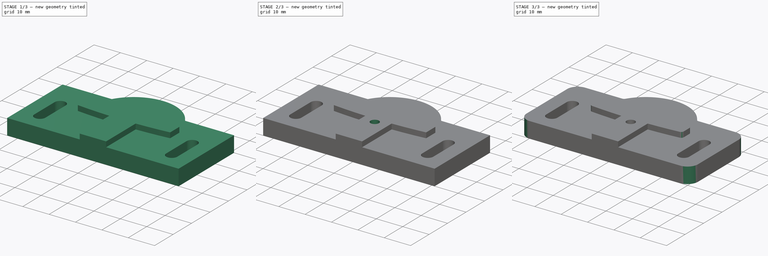
[diagram: build sequence overview — one tinted view per stage of 3, left to right]
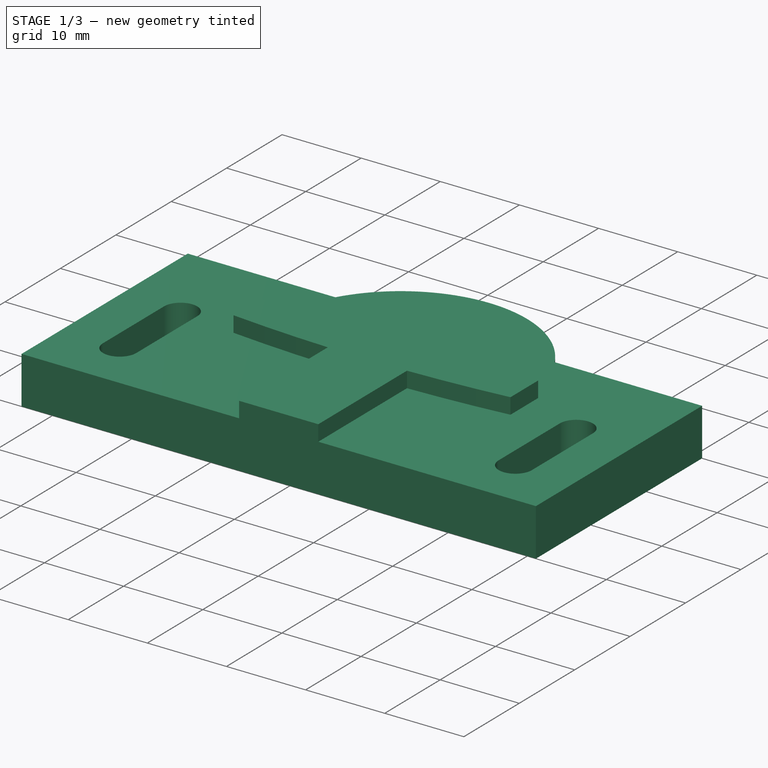
[diagram: stage 1 of 3 — iso view after this stage's code; geometry added in this stage tinted green]
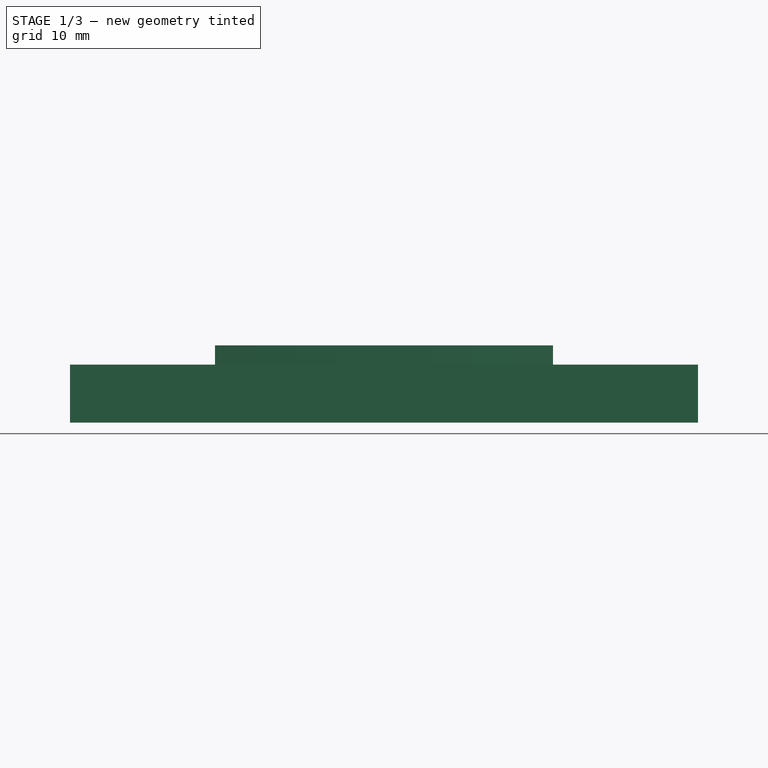
[diagram: stage 1 of 3 — front view after this stage's code; geometry added in this stage tinted green]
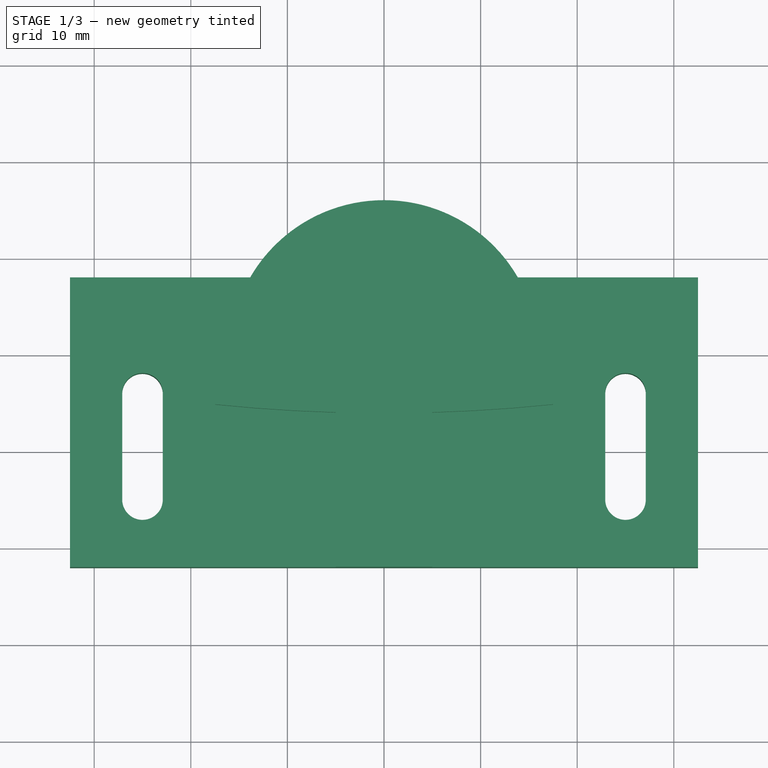
[diagram: stage 1 of 3 — top view after this stage's code; geometry added in this stage tinted green]
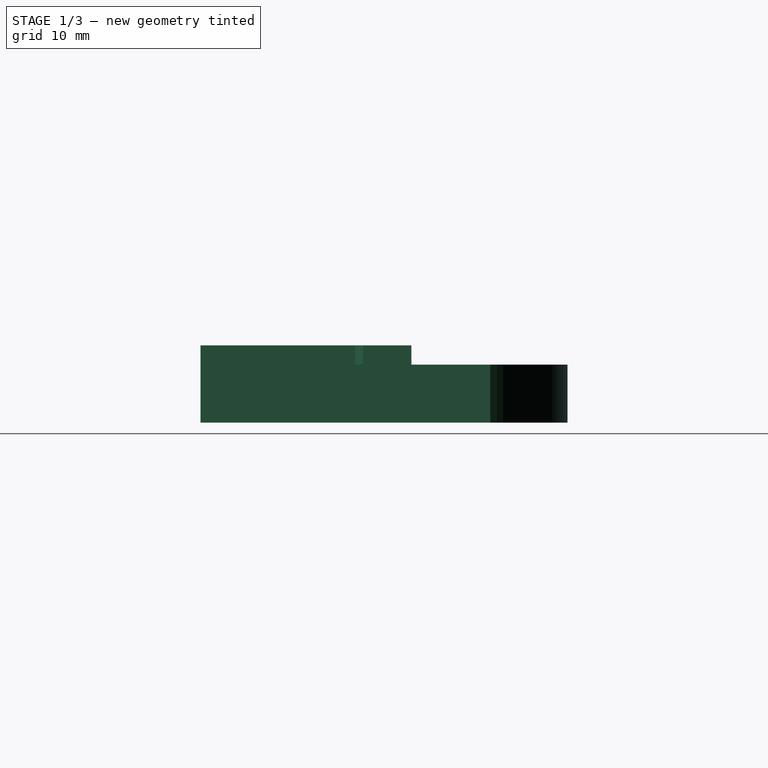
[diagram: stage 1 of 3 — right view after this stage's code; geometry added in this stage tinted green]
FCSTD DOCUMENT  (FreeCAD 0.16R6706 (Git))
Label: bed_mount
License: All rights reserved
LicenseURL: http://en.wikipedia.org/wiki/All_rights_reserved
objects: Sketcher::SketchObject×4, PartDesign::Pad×2, PartDesign::Pocket×2, PartDesign::Fillet×2
note: 14 computed .brp shape members not serialized (recipe doc carries the construction recipe); baked Part::Feature solids carry a one-line shape summary decoded from their .brp

FEATURE [Sketcher::SketchObject] Sketch
  sketch-geometry (14):
    g0: LineSegment StartX=32.5 StartY=18 StartZ=0 EndX=32.5 EndY=-12 EndZ=0
    g1: LineSegment StartX=32.5 StartY=-12 StartZ=0 EndX=-32.5 EndY=-12 EndZ=0
    g2: LineSegment StartX=-32.5 StartY=-12 StartZ=0 EndX=-32.5 EndY=18 EndZ=0
    g3: LineSegment StartX=-32.5 StartY=18 StartZ=0 EndX=-13.8564 EndY=18 EndZ=0
    g4: LineSegment StartX=32.5 StartY=18 StartZ=0 EndX=13.8564 EndY=18 EndZ=0
    g5: ArcOfCircle CenterX=0 CenterY=10 CenterZ=0 NormalX=0 NormalY=0 NormalZ=1 Radius=16 StartAngle=0.523599 EndAngle=2.61799
    g6: ArcOfCircle CenterX=25 CenterY=-5 CenterZ=0 NormalX=0 NormalY=0 NormalZ=1 Radius=2.1 StartAngle=3.14159 EndAngle=6.28319
    g7: ArcOfCircle CenterX=25 CenterY=6 CenterZ=0 NormalX=0 NormalY=0 NormalZ=1 Radius=2.1 StartAngle=0 EndAngle=3.14159
    g8: LineSegment StartX=27.1 StartY=-5 StartZ=0 EndX=27.1 EndY=6 EndZ=0
    g9: LineSegment StartX=22.9 StartY=-5 StartZ=0 EndX=22.9 EndY=6 EndZ=0
    g10: ArcOfCircle CenterX=-25 CenterY=-5 CenterZ=0 NormalX=0 NormalY=0 NormalZ=1 Radius=2.1 StartAngle=3.14159 EndAngle=6.28319
    g11: ArcOfCircle CenterX=-25 CenterY=6 CenterZ=0 NormalX=0 NormalY=0 NormalZ=1 Radius=2.1 StartAngle=0 EndAngle=3.14159
    g12: LineSegment StartX=-22.9 StartY=-5 StartZ=0 EndX=-22.9 EndY=6 EndZ=0
    g13: LineSegment StartX=-27.1 StartY=-5 StartZ=0 EndX=-27.1 EndY=6 EndZ=0
  constraints (38):
    c: Coincident(g0,g1)
    c: Coincident(g1,g2)
    c: Horizontal(g1)
    c: Vertical(g0)
    c: Vertical(g2)
    c: DistanceX(g1) = -65
    c: Symmetric(g1,g0,g-2)
    c: Coincident(g3,g2)
    c: Horizontal(g3)
    c: Coincident(g4,g0)
    c: Horizontal(g4)
    c: PointOnObject(g5,g-2)
    c: Radius(g5) = 16
    c: DistanceY(g-1,g5) = 10
    c: Coincident(g5,g4)
    c: PointOnObject(g5,g3)
    c: Symmetric(g3,g4,g-2)
    c: Tangent(g6,g9) = 1.5708
    c: Tangent(g6,g8) = -1.5708
    c: Tangent(g8,g7) = -1.5708
    c: Tangent(g9,g7) = 1.5708
    c: Vertical(g8)
    c: Equal(g6,g7)
    c: Tangent(g10,g13) = 1.5708
    c: Tangent(g10,g12) = -1.5708
    c: Tangent(g12,g11) = -1.5708
    c: Tangent(g13,g11) = 1.5708
    c: Vertical(g12)
    c: Equal(g10,g11)
    c: Equal(g10,g6)
    c: Radius(g6) = 2.1
    c: Symmetric(g10,g6,g-2)
    c: DistanceX(g10,g6) = 50
    c: DistanceY(g7,g0) = 12
    c: Symmetric(g11,g7,g-2)
    c: DistanceY(g-1,g1) = -12
    c: DistanceY(g0) = -30
    c: DistanceY(g10,g1) = -7
FEATURE [PartDesign::Pad] Pad
  Length = 6
  Length2 = 100
  Sketch = -> Sketch
  Type = 0
FEATURE [Sketcher::SketchObject] Sketch001
  ExternalGeometry = -> [Pad]
  Placement = pos=(0,0,6) rot=(0,0,1;0rad)
  Support = -> Pad [Face16]
  sketch-geometry (10):
    g0: LineSegment StartX=5 StartY=-12 StartZ=0 EndX=-5 EndY=-12 EndZ=0
    g1: LineSegment StartX=-5 StartY=-12 StartZ=0 EndX=-5 EndY=4 EndZ=0
    g2: ArcOfCircle CenterX=0 CenterY=173.899 CenterZ=0 NormalX=0 NormalY=0 NormalZ=1 Radius=165 StartAngle=4.60613 EndAngle=4.81865
    g3: LineSegment StartX=5 StartY=-12 StartZ=0 EndX=5 EndY=4 EndZ=0
    g4: LineSegment [constr] StartX=-17.5 StartY=4.82972 StartZ=0 EndX=17.5 EndY=4.82972 EndZ=0
    g5: LineSegment StartX=-17.5 StartY=4.82972 StartZ=0 EndX=-17.5 EndY=9.82972 EndZ=0
    g6: LineSegment StartX=17.5 StartY=4.82972 StartZ=0 EndX=17.5 EndY=9.82972 EndZ=0
    g7: ArcOfCircle CenterX=0 CenterY=173.899 CenterZ=0 NormalX=0 NormalY=0 NormalZ=1 Radius=169.973 StartAngle=4.60925 EndAngle=4.68297
    g8: ArcOfCircle CenterX=0 CenterY=173.899 CenterZ=0 NormalX=0 NormalY=0 NormalZ=1 Radius=169.973 StartAngle=4.74181 EndAngle=4.81553
    g9: LineSegment [constr] StartX=0 StartY=0 StartZ=0 EndX=0 EndY=173.899 EndZ=0
  constraints (29):
    c: Coincident(g0,g1)
    c: Horizontal(g0)
    c: Vertical(g1)
    c: Symmetric(g0,g0,g-2)
    c: PointOnObject(g0,g-3)
    c: DistanceX(g0,g0) = 10
    c: Coincident(g3,g0)
    c: Vertical(g3)
    c: DistanceY(g3) = 16
    c: Horizontal(g4)
    c: DistanceX(g4,g4) = 35
    c: Coincident(g5,g4)
    c: Vertical(g5)
    c: Coincident(g6,g4)
    c: Coincident(g2,g5)
    c: Coincident(g2,g6)
    c: Coincident(g7,g2)
    c: Coincident(g7,g4)
    c: Coincident(g7,g1)
    c: Coincident(g8,g2)
    c: Coincident(g8,g3)
    c: Coincident(g8,g4)
    c: Vertical(g6)
    c: Coincident(g9,g-1)
    c: Coincident(g9,g2)
    c: Vertical(g9)
    c: Symmetric(g4,g4,g-2)
    c: DistanceY(g6) = 5
    c: Radius(g2) = 165
FEATURE [PartDesign::Pad] Pad001
  Length = 2
  Length2 = 100
  Sketch = -> Sketch001
  Type = 0
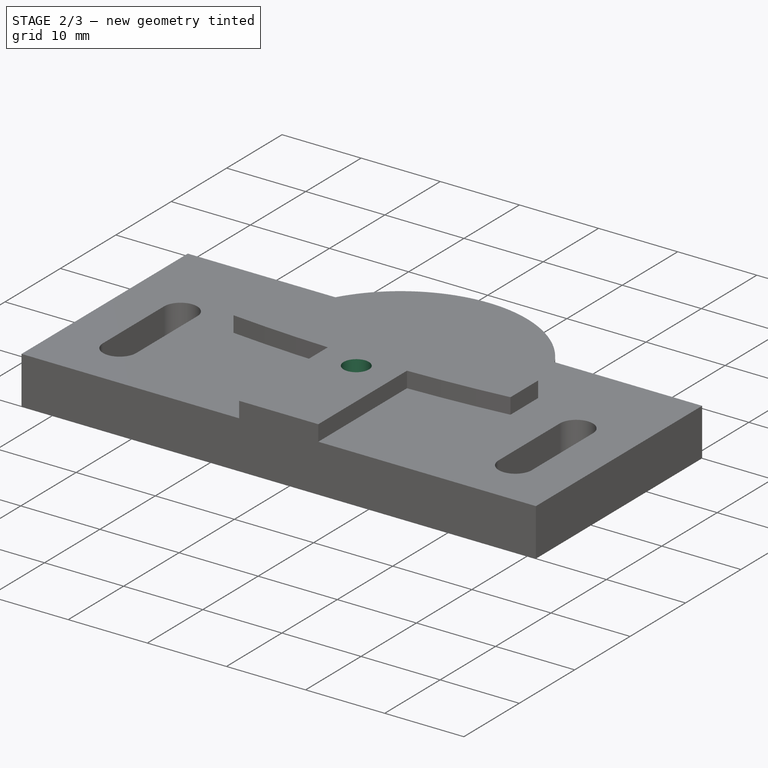
[diagram: stage 2 of 3 — iso view after this stage's code; geometry added in this stage tinted green]
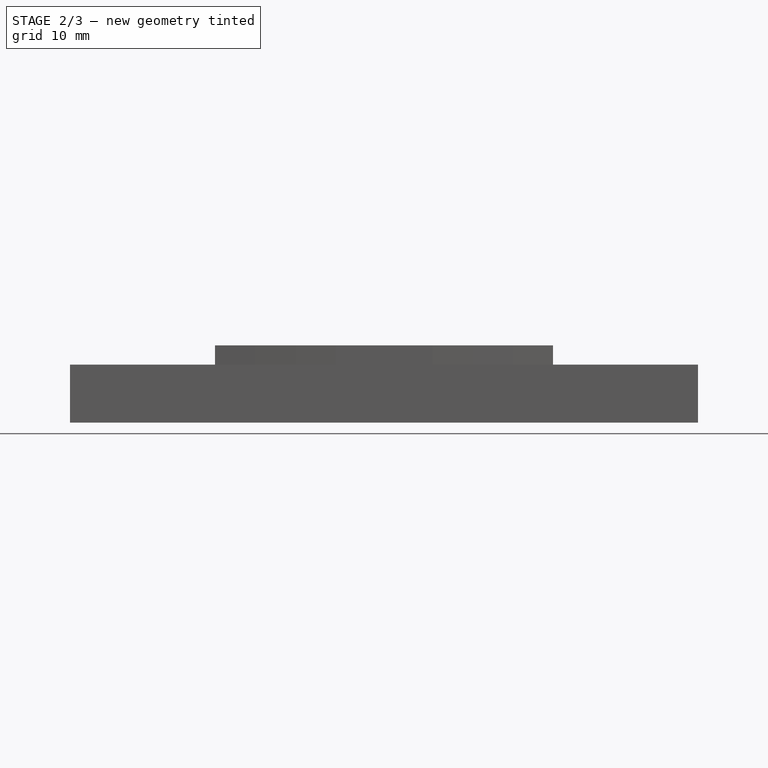
[diagram: stage 2 of 3 — front view after this stage's code; geometry added in this stage tinted green]
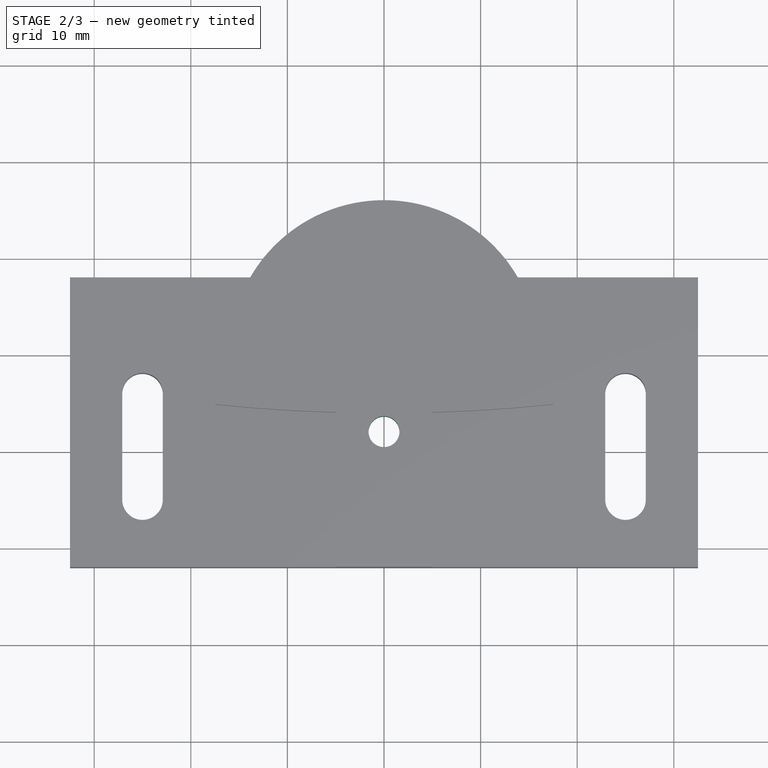
[diagram: stage 2 of 3 — top view after this stage's code; geometry added in this stage tinted green]
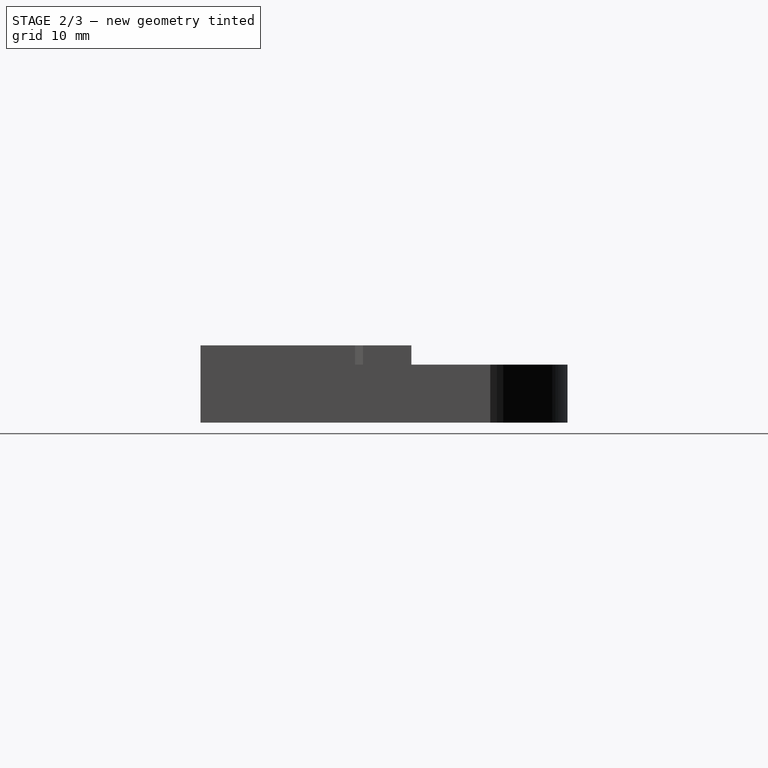
[diagram: stage 2 of 3 — right view after this stage's code; geometry added in this stage tinted green]
FEATURE [Sketcher::SketchObject] Sketch002
  Placement = pos=(0,0,8) rot=(0,0,1;0rad)
  Support = -> Pad001 [Face25]
  sketch-geometry (1):
    g0: Circle CenterX=0 CenterY=2 CenterZ=0 NormalX=0 NormalY=0 NormalZ=1 Radius=1.6
  constraints (3):
    c: Radius(g0) = 1.6
    c: PointOnObject(g0,g-2)
    c: DistanceY(g-1,g0) = 2
FEATURE [PartDesign::Pocket] Pocket
  Length = 5
  Sketch = -> Sketch002
  Type = 1
FEATURE [Sketcher::SketchObject] Sketch003
  ExternalGeometry = -> [Pocket]
  Placement = pos=(0,0,0) rot=(1,0,0;3.14159rad)
  Support = -> Pocket [Face4]
  sketch-geometry (7):
    g0: LineSegment StartX=2.85 StartY=-3.64545 StartZ=0 EndX=2.85 EndY=-0.354552 EndZ=0
    g1: LineSegment StartX=2.85 StartY=-0.354552 StartZ=0 EndX=0 EndY=1.2909 EndZ=0
    g2: LineSegment StartX=0 StartY=1.2909 StartZ=0 EndX=-2.85 EndY=-0.354552 EndZ=0
    g3: LineSegment StartX=-2.85 StartY=-0.354552 StartZ=0 EndX=-2.85 EndY=-3.64545 EndZ=0
    g4: LineSegment StartX=-2.85 StartY=-3.64545 StartZ=0 EndX=0 EndY=-5.2909 EndZ=0
    g5: LineSegment StartX=0 StartY=-5.2909 StartZ=0 EndX=2.85 EndY=-3.64545 EndZ=0
    g6: Circle [constr] CenterX=0 CenterY=-2 CenterZ=0 NormalX=0 NormalY=0 NormalZ=1 Radius=3.2909
  constraints (17):
    c: Coincident(g0,g1)
    c: Coincident(g1,g2)
    c: Coincident(g2,g3)
    c: Coincident(g3,g4)
    c: Coincident(g4,g5)
    c: Coincident(g5,g0)
    c: Equal(g0, g1-g5) x5
    c: PointOnObject(g0,g6)
    c: PointOnObject(g1,g6)
    c: PointOnObject(g2,g6)
    c: PointOnObject(g3,g6)
    c: PointOnObject(g4,g6)
    c: PointOnObject(g5,g6)
    c: Coincident(g3,g-3)
    c: Vertical(g0)
    c: Coincident(g6,g-3)
    c: DistanceX(g2,g0) = 5.7
FEATURE [PartDesign::Pocket] Pocket001
  Length = 4
  Sketch = -> Sketch003
  Type = 0
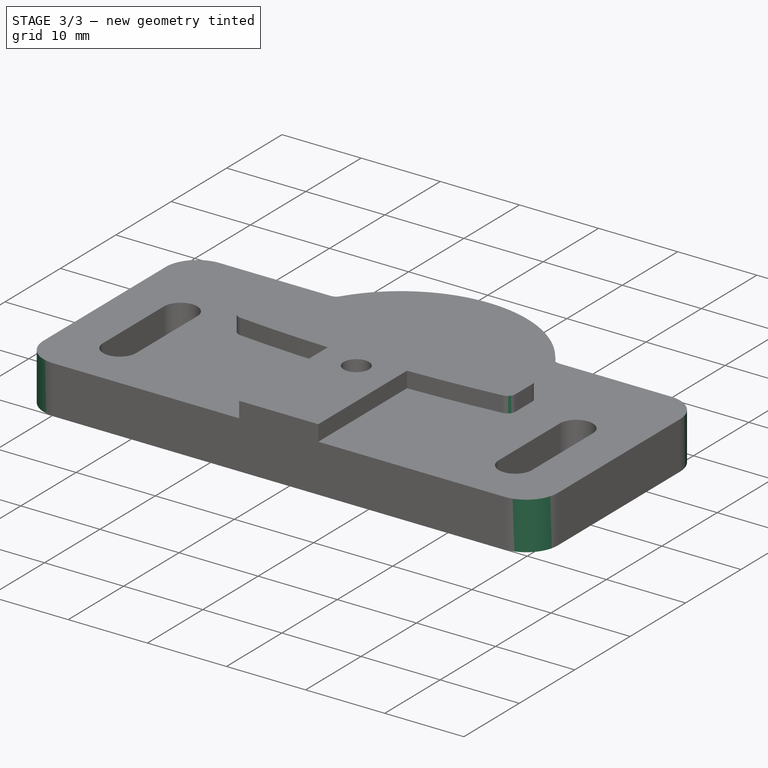
[diagram: stage 3 of 3 — iso view after this stage's code; geometry added in this stage tinted green]
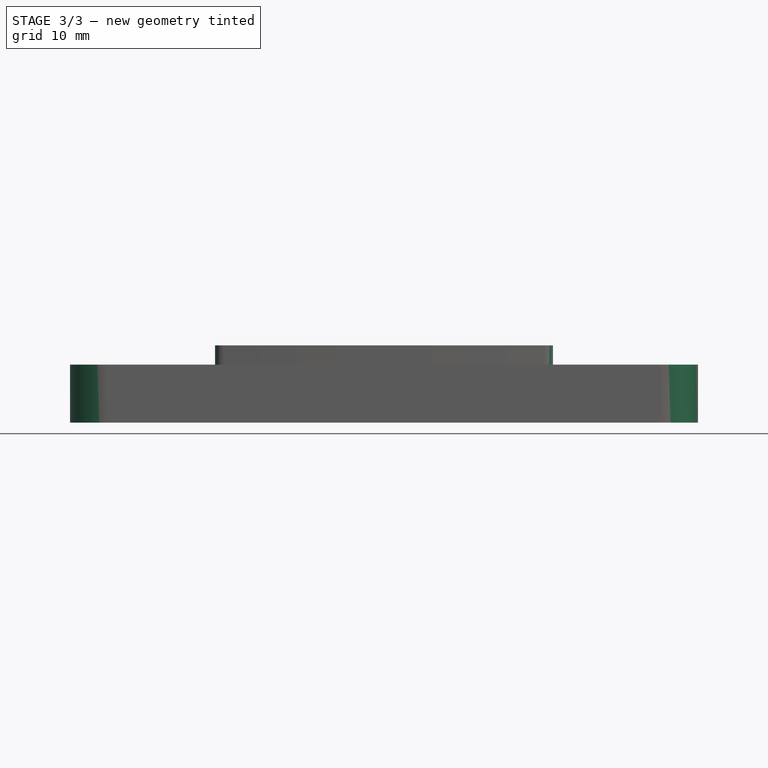
[diagram: stage 3 of 3 — front view after this stage's code; geometry added in this stage tinted green]
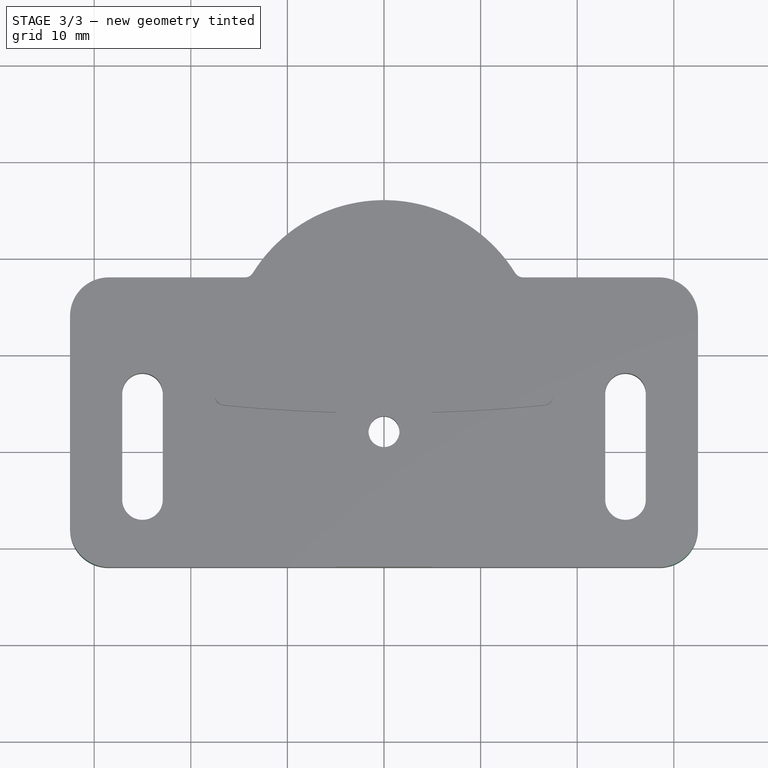
[diagram: stage 3 of 3 — top view after this stage's code; geometry added in this stage tinted green]
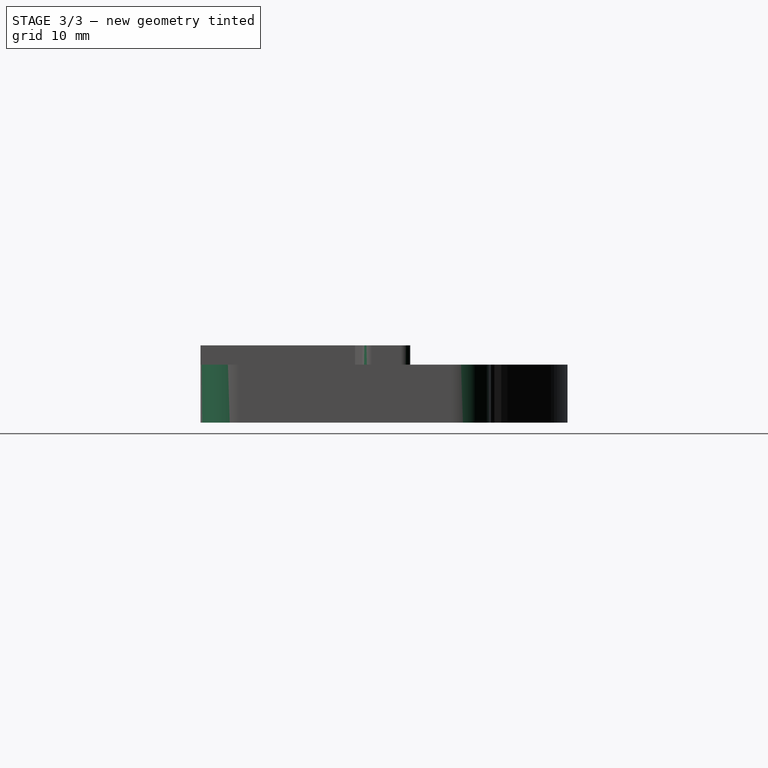
[diagram: stage 3 of 3 — right view after this stage's code; geometry added in this stage tinted green]
FEATURE [PartDesign::Fillet] Fillet
  Base = -> Pocket001 [Edge1,Edge2,Edge49,Edge10]
  Radius = 4
FEATURE [PartDesign::Fillet] Fillet001
  Base = -> Fillet [Edge88,Edge86,Edge89,Edge91,Edge58,Edge55]
  Radius = 1
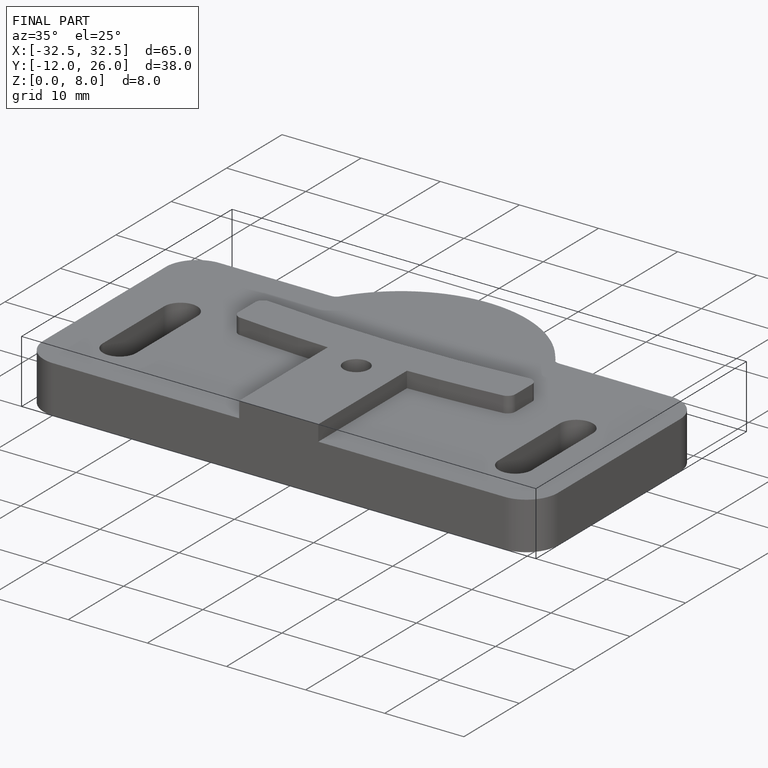
[diagram: finished part — iso view with bounding-box wireframe]
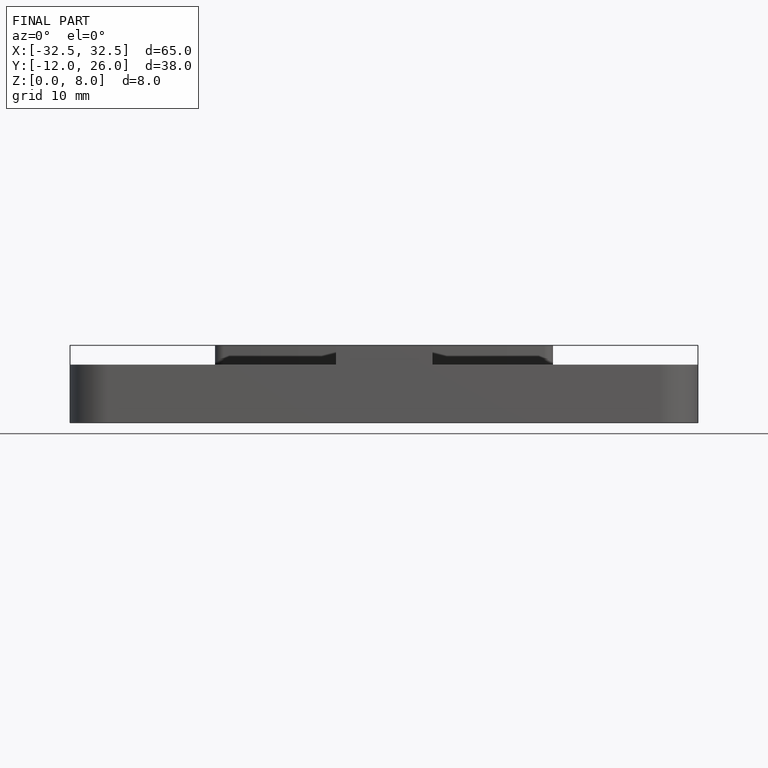
[diagram: finished part — front view with bounding-box wireframe]
